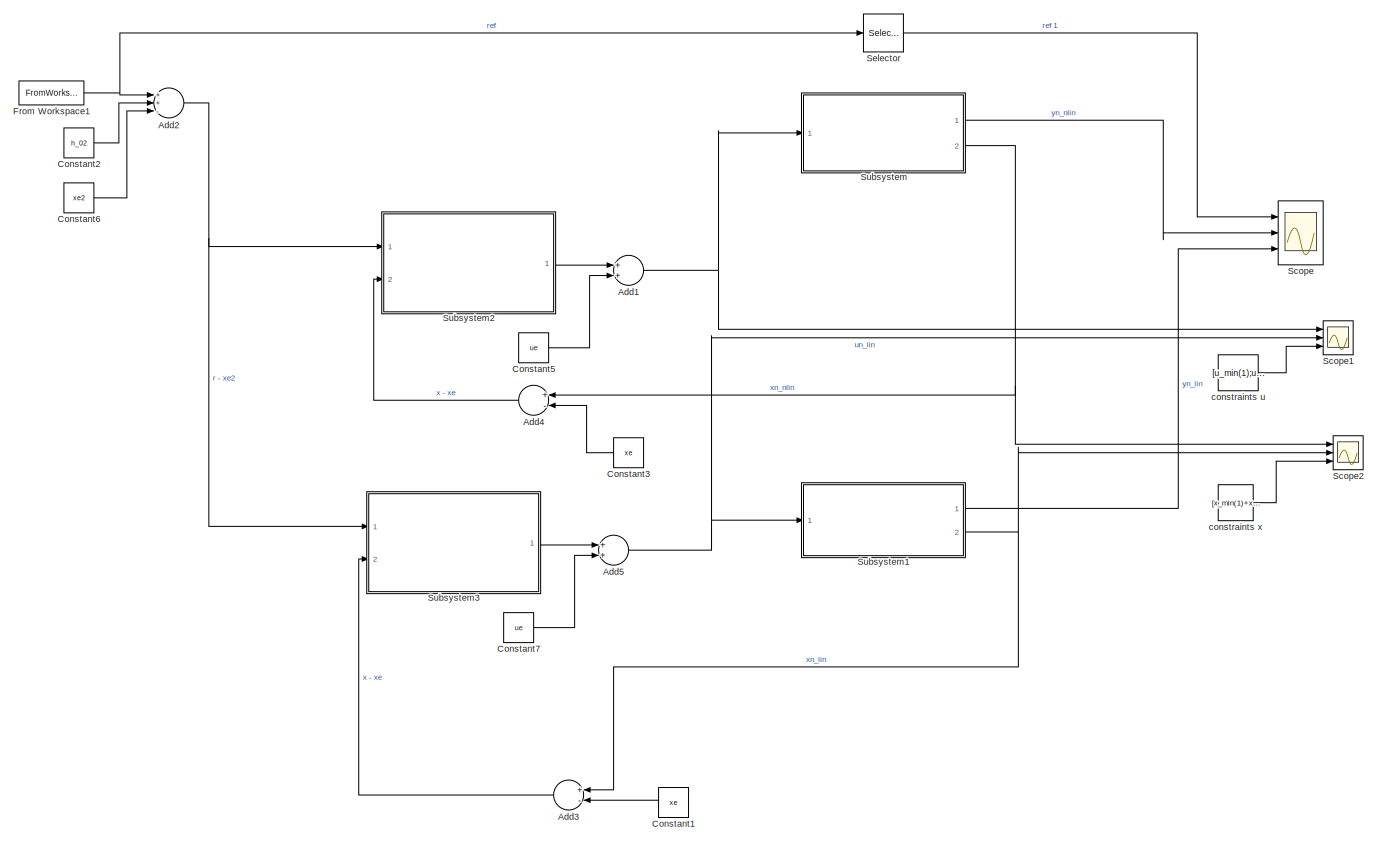
[diagram: root canvas - part 1/1, most of the canvas]
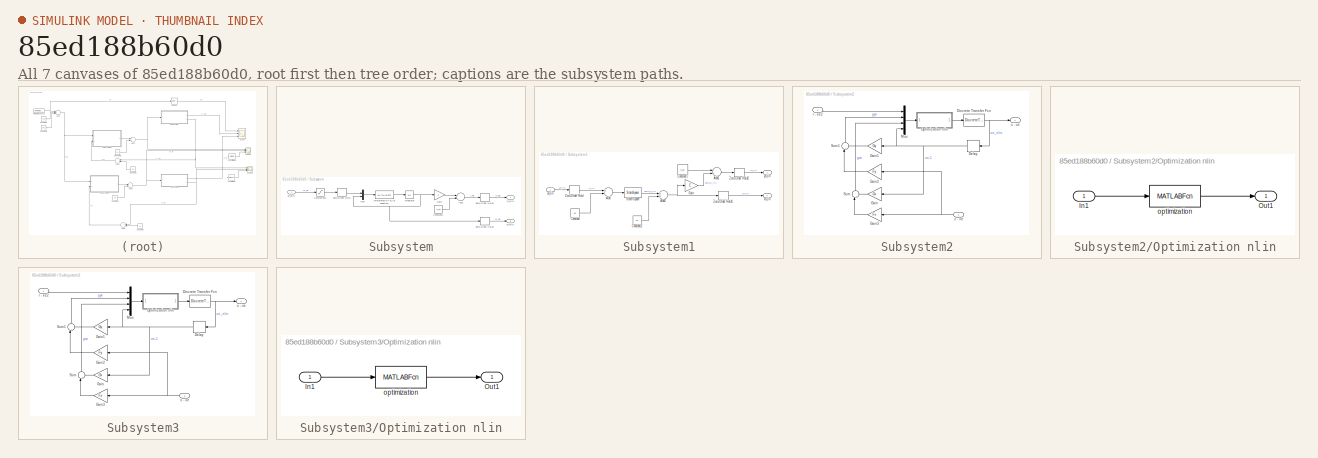
[diagram: thumbnail index - all 7 canvases of the model, root first then tree order]
MODEL slx_85ed188b60d0
KIND model
CONFIG AbsTol = auto
CONFIG EnableMultiTasking = off
CONFIG FixedStep = auto
CONFIG MaxStep = auto
CONFIG MinStep = auto
CONFIG RelTol = 1e-3
CONFIG SampleTimeConstraint = Unconstrained
CONFIG Solver = VariableStepAuto
CONFIG SolverName = VariableStepAuto
CONFIG StartTime = 0.0
CONFIG StopTime = time_end
BLOCK [Sum] Add1
  InputSameDT = off
  OutDataTypeStr = Inherit: Inherit via internal rule
  Ports = [2, 1]
  SaturateOnIntegerOverflow = off
BLOCK [Sum] Add2
  InputSameDT = off
  Inputs = ++-
  OutDataTypeStr = Inherit: Inherit via internal rule
  Ports = [3, 1]
  SaturateOnIntegerOverflow = off
BLOCK [Sum] Add3
  InputSameDT = off
  Inputs = +-
  OutDataTypeStr = Inherit: Inherit via internal rule
  Ports = [2, 1]
  SaturateOnIntegerOverflow = off
BLOCK [Sum] Add4
  InputSameDT = off
  Inputs = +-
  OutDataTypeStr = Inherit: Inherit via internal rule
  Ports = [2, 1]
  SaturateOnIntegerOverflow = off
BLOCK [Sum] Add5
  InputSameDT = off
  OutDataTypeStr = Inherit: Inherit via internal rule
  Ports = [2, 1]
  SaturateOnIntegerOverflow = off
BLOCK [Constant] Constant1
  Value = xe
BLOCK [Constant] Constant2
  Value = h_02
BLOCK [Constant] Constant3
  Value = xe
BLOCK [Constant] Constant5
  Value = ue
BLOCK [Constant] Constant6
  Value = xe2
BLOCK [Constant] Constant7
  Value = ue
BLOCK [FromWorkspace] From Workspace1
  SampleTime = 0
  VariableName = r
  ZeroCross = on
BLOCK [Scope] Scope
  Floating = off
  NumInputPorts = 3
  Ports = [3]
  ScopeSpecificationString = Simulink.scopes.TimeScopeBlockCfg('CurrentConfiguration', extmgr.ConfigurationSet(extmgr.Configuration('Core','General UI',true),extmgr.Configuration('Core','Source UI',true),extmgr.Configuration('Sources','WiredSimulink',true),extmgr.Configuration('Visuals','Time Domain',true,'SerializedDisplays',{struct('MinYLimReal','-1.8928','MaxYLimReal','17.03522','YLabelReal','','MinYLimMag','0.00000','MaxY...<+1428ch>
BLOCK [Scope] Scope1
  Floating = off
  NumInputPorts = 3
  Ports = [3]
  ScopeSpecificationString = Simulink.scopes.TimeScopeBlockCfg('CurrentConfiguration', extmgr.ConfigurationSet(extmgr.Configuration('Core','General UI',true),extmgr.Configuration('Core','Source UI',true),extmgr.Configuration('Sources','WiredSimulink',true,'DataLoggingVariableName','ScopeData1'),extmgr.Configuration('Visuals','Time Domain',true,'SerializedDisplays',{struct('MinYLimReal','-0.625','MaxYLimReal','5.625','YLabelRe...<+1489ch>
BLOCK [Scope] Scope2
  Floating = off
  NumInputPorts = 3
  Ports = [3]
  ScopeSpecificationString = Simulink.scopes.TimeScopeBlockCfg('CurrentConfiguration', extmgr.ConfigurationSet(extmgr.Configuration('Core','General UI',true),extmgr.Configuration('Core','Source UI',true),extmgr.Configuration('Sources','WiredSimulink',true,'DataLoggingVariableName','ScopeData1'),extmgr.Configuration('Visuals','Time Domain',true,'SerializedDisplays',{struct('MinYLimReal','7.49465','MaxYLimReal','33.12092','YLab...<+1741ch>
BLOCK [Selector] Selector
  IndexOptions = Index vector (dialog)
  Indices = [1]
  InputPortWidth = Np
  OutputSizes = 1
  Ports = [1, 1]
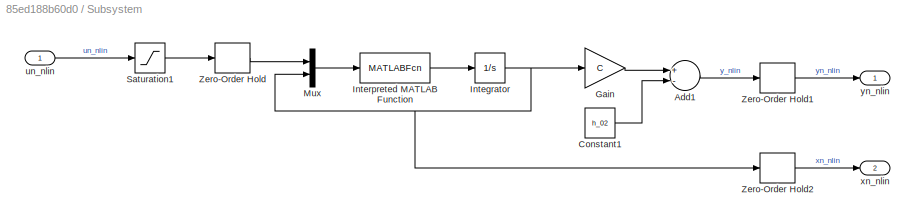
BLOCK [SubSystem] Subsystem
  Ports = [1, 2]
  RequestExecContextInheritance = off
BLOCK [Sum] Subsystem/Add1
  InputSameDT = off
  Inputs = +-
  OutDataTypeStr = Inherit: Inherit via internal rule
  Ports = [2, 1]
  SaturateOnIntegerOverflow = off
BLOCK [Constant] Subsystem/Constant1
  Value = h_02
BLOCK [Gain] Subsystem/Gain
  Gain = C
  Multiplication = Matrix(K*u)
  OutDataTypeStr = Inherit: Inherit via internal rule
  ParamDataTypeStr = Inherit: Inherit via internal rule
  SaturateOnIntegerOverflow = off
BLOCK [Integrator] Subsystem/Integrator
  InitialCondition = [h_01;h_02]
  Ports = [1, 1]
BLOCK [MATLABFcn] Subsystem/Interpreted MATLAB Function
  MATLABFcn = nonlinear_2_tank_model_function_discrete
  Ports = [1, 1]
BLOCK [Mux] Subsystem/Mux
  DisplayOption = bar
  Inputs = 2
  Ports = [2, 1]
BLOCK [Saturate] Subsystem/Saturation1
  InputPortMap = u0
  LowerLimit = u_min(1)
  Ports = [1, 1]
  UpperLimit = u_max(1)
BLOCK [ZeroOrderHold] Subsystem/Zero-Order Hold
  SampleTime = Td
BLOCK [ZeroOrderHold] Subsystem/Zero-Order Hold1
  SampleTime = Td
BLOCK [ZeroOrderHold] Subsystem/Zero-Order Hold2
  SampleTime = Td
BLOCK [Inport] Subsystem/un_nlin
  IconDisplay = Port number
BLOCK [Outport] Subsystem/xn_nlin
  IconDisplay = Port number
  Port = 2
BLOCK [Outport] Subsystem/yn_nlin
  IconDisplay = Port number
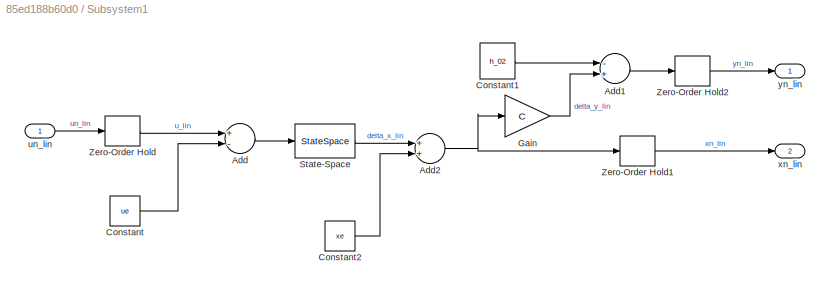
BLOCK [SubSystem] Subsystem1
  Ports = [1, 2]
  RequestExecContextInheritance = off
BLOCK [Sum] Subsystem1/Add
  InputSameDT = off
  Inputs = +-
  OutDataTypeStr = Inherit: Inherit via internal rule
  Ports = [2, 1]
  SaturateOnIntegerOverflow = off
BLOCK [Sum] Subsystem1/Add1
  InputSameDT = off
  Inputs = -+
  OutDataTypeStr = Inherit: Inherit via internal rule
  Ports = [2, 1]
  SaturateOnIntegerOverflow = off
BLOCK [Sum] Subsystem1/Add2
  InputSameDT = off
  OutDataTypeStr = Inherit: Inherit via internal rule
  Ports = [2, 1]
  SaturateOnIntegerOverflow = off
BLOCK [Constant] Subsystem1/Constant
  Value = ue
BLOCK [Constant] Subsystem1/Constant1
  Value = h_02
BLOCK [Constant] Subsystem1/Constant2
  Value = xe
BLOCK [Gain] Subsystem1/Gain
  Gain = C
  Multiplication = Matrix(K*u)
  OutDataTypeStr = Inherit: Inherit via internal rule
  ParamDataTypeStr = Inherit: Inherit via internal rule
  SaturateOnIntegerOverflow = off
BLOCK [StateSpace] Subsystem1/State-Space
  A = A
  B = B
  C = [[1,0];[0,1]]
  D = [[0,0];[0,0]]
  InitialCondition = [h_01;h_02] - xe
  Ports = [1, 1]
BLOCK [ZeroOrderHold] Subsystem1/Zero-Order Hold
  SampleTime = Td
BLOCK [ZeroOrderHold] Subsystem1/Zero-Order Hold1
  SampleTime = Td
BLOCK [ZeroOrderHold] Subsystem1/Zero-Order Hold2
  SampleTime = Td
BLOCK [Inport] Subsystem1/un_lin
  IconDisplay = Port number
BLOCK [Outport] Subsystem1/xn_lin
  IconDisplay = Port number
  Port = 2
BLOCK [Outport] Subsystem1/yn_lin
  IconDisplay = Port number
BLOCK [SubSystem] Subsystem2
  Ports = [2, 1]
  RequestExecContextInheritance = off
BLOCK [Delay] Subsystem2/Delay
  DelayLength = 1
  InitialCondition = [0;0]
  InputPortMap = u0
  Ports = [1, 1]
  SampleTime = Td
BLOCK [DiscreteTransferFcn] Subsystem2/Discrete Transfer Fcn
  Denominator = [1 -1]
  InitialStates = [0;0]
  InputPortMap = u0
  Numerator = [1 0]
  Ports = [1, 1]
  SampleTime = Td
BLOCK [Gain] Subsystem2/Gain
  Gain = Gx
  Multiplication = Matrix(K*u)
  OutDataTypeStr = Inherit: Inherit via internal rule
  ParamDataTypeStr = Inherit: Inherit via internal rule
  SaturateOnIntegerOverflow = off
BLOCK [Gain] Subsystem2/Gain1
  Gain = Gy
  Multiplication = Matrix(K*u)
  OutDataTypeStr = Inherit: Inherit via internal rule
  ParamDataTypeStr = Inherit: Inherit via internal rule
  SaturateOnIntegerOverflow = off
BLOCK [Gain] Subsystem2/Gain2
  Gain = Fy
  Multiplication = Matrix(K*u)
  OutDataTypeStr = Inherit: Inherit via internal rule
  ParamDataTypeStr = Inherit: Inherit via internal rule
  SaturateOnIntegerOverflow = off
BLOCK [Gain] Subsystem2/Gain3
  Gain = Fx
  Multiplication = Matrix(K*u)
  OutDataTypeStr = Inherit: Inherit via internal rule
  ParamDataTypeStr = Inherit: Inherit via internal rule
  SaturateOnIntegerOverflow = off
BLOCK [Mux] Subsystem2/Mux
  DisplayOption = bar
  Ports = [4, 1]
BLOCK [SubSystem] Subsystem2/Optimization nlin
  Ports = [1, 1]
  RequestExecContextInheritance = off
  SystemSampleTime = Td
  TreatAsAtomicUnit = on
BLOCK [Inport] Subsystem2/Optimization nlin/In1
  IconDisplay = Port number
BLOCK [Outport] Subsystem2/Optimization nlin/Out1
  IconDisplay = Port number
BLOCK [MATLABFcn] Subsystem2/Optimization nlin/optimization
  MATLABFcn = online_opt
  Ports = [1, 1]
BLOCK [Sum] Subsystem2/Sum
  IconShape = round
  InputSameDT = off
  Inputs = |++
  OutDataTypeStr = Inherit: Inherit via internal rule
  Ports = [2, 1]
  SaturateOnIntegerOverflow = off
BLOCK [Sum] Subsystem2/Sum1
  IconShape = round
  InputSameDT = off
  Inputs = |++
  OutDataTypeStr = Inherit: Inherit via internal rule
  Ports = [2, 1]
  SaturateOnIntegerOverflow = off
BLOCK [Inport] Subsystem2/r - xe2
  IconDisplay = Port number
BLOCK [Outport] Subsystem2/u - ue
  IconDisplay = Port number
BLOCK [Inport] Subsystem2/x - xe
  IconDisplay = Port number
  Port = 2
BLOCK [SubSystem] Subsystem3
  Ports = [2, 1]
  RequestExecContextInheritance = off
BLOCK [Delay] Subsystem3/Delay
  DelayLength = 1
  InitialCondition = [0;0]
  InputPortMap = u0
  Ports = [1, 1]
  SampleTime = Td
BLOCK [DiscreteTransferFcn] Subsystem3/Discrete Transfer Fcn
  Denominator = [1 -1]
  InitialStates = [0;0]
  InputPortMap = u0
  Numerator = [1 0]
  Ports = [1, 1]
  SampleTime = Td
BLOCK [Gain] Subsystem3/Gain
  Gain = Gx
  Multiplication = Matrix(K*u)
  OutDataTypeStr = Inherit: Inherit via internal rule
  ParamDataTypeStr = Inherit: Inherit via internal rule
  SaturateOnIntegerOverflow = off
BLOCK [Gain] Subsystem3/Gain1
  Gain = Gy
  Multiplication = Matrix(K*u)
  OutDataTypeStr = Inherit: Inherit via internal rule
  ParamDataTypeStr = Inherit: Inherit via internal rule
  SaturateOnIntegerOverflow = off
BLOCK [Gain] Subsystem3/Gain2
  Gain = Fy
  Multiplication = Matrix(K*u)
  OutDataTypeStr = Inherit: Inherit via internal rule
  ParamDataTypeStr = Inherit: Inherit via internal rule
  SaturateOnIntegerOverflow = off
BLOCK [Gain] Subsystem3/Gain3
  Gain = Fx
  Multiplication = Matrix(K*u)
  OutDataTypeStr = Inherit: Inherit via internal rule
  ParamDataTypeStr = Inherit: Inherit via internal rule
  SaturateOnIntegerOverflow = off
BLOCK [Mux] Subsystem3/Mux
  DisplayOption = bar
  Ports = [4, 1]
BLOCK [SubSystem] Subsystem3/Optimization nlin
  Ports = [1, 1]
  RequestExecContextInheritance = off
  SystemSampleTime = Td
  TreatAsAtomicUnit = on
BLOCK [Inport] Subsystem3/Optimization nlin/In1
  IconDisplay = Port number
BLOCK [Outport] Subsystem3/Optimization nlin/Out1
  IconDisplay = Port number
BLOCK [MATLABFcn] Subsystem3/Optimization nlin/optimization
  MATLABFcn = online_opt
  Ports = [1, 1]
BLOCK [Sum] Subsystem3/Sum
  IconShape = round
  InputSameDT = off
  Inputs = |++
  OutDataTypeStr = Inherit: Inherit via internal rule
  Ports = [2, 1]
  SaturateOnIntegerOverflow = off
BLOCK [Sum] Subsystem3/Sum1
  IconShape = round
  InputSameDT = off
  Inputs = |++
  OutDataTypeStr = Inherit: Inherit via internal rule
  Ports = [2, 1]
  SaturateOnIntegerOverflow = off
BLOCK [Inport] Subsystem3/r - xe2
  IconDisplay = Port number
BLOCK [Outport] Subsystem3/u - ue
  IconDisplay = Port number
BLOCK [Inport] Subsystem3/x - xe
  IconDisplay = Port number
  Port = 2
BLOCK [Constant] constraints u
  Value = [u_min(1);u_max(1)]
BLOCK [Constant] constraints x
  Value = [x_min(1)+xe1; x_min(2)+xe2; x_max(1)+xe1;x_max(2)+xe2]
NET Add1:1 -> Scope1:1, Subsystem:1
NET Add2:1 -> Subsystem2:1, Subsystem3:1
LINE Add3:1 -> Subsystem3:2
LINE Add4:1 -> Subsystem2:2
NET Add5:1 -> Scope1:2, Subsystem1:1
LINE Constant1:1 -> Add3:2
LINE Constant2:1 -> Add2:2
LINE Constant3:1 -> Add4:2
LINE Constant5:1 -> Add1:2
LINE Constant6:1 -> Add2:3
LINE Constant7:1 -> Add5:2
NET From Workspace1:1 -> Add2:1, Selector:1
LINE Selector:1 -> Scope:1
LINE Subsystem/Add1:1 -> Subsystem/Zero-Order Hold1:1
LINE Subsystem/Constant1:1 -> Subsystem/Add1:2
LINE Subsystem/Gain:1 -> Subsystem/Add1:1
NET Subsystem/Integrator:1 -> Subsystem/Gain:1, Subsystem/Mux:2, Subsystem/Zero-Order Hold2:1
LINE Subsystem/Interpreted MATLAB Function:1 -> Subsystem/Integrator:1
LINE Subsystem/Mux:1 -> Subsystem/Interpreted MATLAB Function:1
LINE Subsystem/Saturation1:1 -> Subsystem/Zero-Order Hold:1
LINE Subsystem/Zero-Order Hold1:1 -> Subsystem/yn_nlin:1
LINE Subsystem/Zero-Order Hold2:1 -> Subsystem/xn_nlin:1
LINE Subsystem/Zero-Order Hold:1 -> Subsystem/Mux:1
LINE Subsystem/un_nlin:1 -> Subsystem/Saturation1:1
LINE Subsystem1/Add1:1 -> Subsystem1/Zero-Order Hold2:1
NET Subsystem1/Add2:1 -> Subsystem1/Gain:1, Subsystem1/Zero-Order Hold1:1
LINE Subsystem1/Add:1 -> Subsystem1/State-Space:1
LINE Subsystem1/Constant1:1 -> Subsystem1/Add1:1
LINE Subsystem1/Constant2:1 -> Subsystem1/Add2:2
LINE Subsystem1/Constant:1 -> Subsystem1/Add:2
LINE Subsystem1/Gain:1 -> Subsystem1/Add1:2
LINE Subsystem1/State-Space:1 -> Subsystem1/Add2:1
LINE Subsystem1/Zero-Order Hold1:1 -> Subsystem1/xn_lin:1
LINE Subsystem1/Zero-Order Hold2:1 -> Subsystem1/yn_lin:1
LINE Subsystem1/Zero-Order Hold:1 -> Subsystem1/Add:1
LINE Subsystem1/un_lin:1 -> Subsystem1/Zero-Order Hold:1
LINE Subsystem1:1 -> Scope:3
NET Subsystem1:2 -> Add3:1, Scope2:2
NET Subsystem2/Delay:1 -> Subsystem2/Gain1:1, Subsystem2/Gain:1, Subsystem2/Mux:4
NET Subsystem2/Discrete Transfer Fcn:1 -> Subsystem2/Delay:1, Subsystem2/u - ue:1
LINE Subsystem2/Gain1:1 -> Subsystem2/Sum1:2
LINE Subsystem2/Gain2:1 -> Subsystem2/Sum1:1
LINE Subsystem2/Gain3:1 -> Subsystem2/Sum:1
LINE Subsystem2/Gain:1 -> Subsystem2/Sum:2
LINE Subsystem2/Mux:1 -> Subsystem2/Optimization nlin:1
LINE Subsystem2/Optimization nlin/In1:1 -> Subsystem2/Optimization nlin/optimization:1
LINE Subsystem2/Optimization nlin/optimization:1 -> Subsystem2/Optimization nlin/Out1:1
LINE Subsystem2/Optimization nlin:1 -> Subsystem2/Discrete Transfer Fcn:1
LINE Subsystem2/Sum1:1 -> Subsystem2/Mux:2
LINE Subsystem2/Sum:1 -> Subsystem2/Mux:3
LINE Subsystem2/r - xe2:1 -> Subsystem2/Mux:1
NET Subsystem2/x - xe:1 -> Subsystem2/Gain2:1, Subsystem2/Gain3:1
LINE Subsystem2:1 -> Add1:1
NET Subsystem3/Delay:1 -> Subsystem3/Gain1:1, Subsystem3/Gain:1, Subsystem3/Mux:4
NET Subsystem3/Discrete Transfer Fcn:1 -> Subsystem3/Delay:1, Subsystem3/u - ue:1
LINE Subsystem3/Gain1:1 -> Subsystem3/Sum1:2
LINE Subsystem3/Gain2:1 -> Subsystem3/Sum1:1
LINE Subsystem3/Gain3:1 -> Subsystem3/Sum:1
LINE Subsystem3/Gain:1 -> Subsystem3/Sum:2
LINE Subsystem3/Mux:1 -> Subsystem3/Optimization nlin:1
LINE Subsystem3/Optimization nlin/In1:1 -> Subsystem3/Optimization nlin/optimization:1
LINE Subsystem3/Optimization nlin/optimization:1 -> Subsystem3/Optimization nlin/Out1:1
LINE Subsystem3/Optimization nlin:1 -> Subsystem3/Discrete Transfer Fcn:1
LINE Subsystem3/Sum1:1 -> Subsystem3/Mux:2
LINE Subsystem3/Sum:1 -> Subsystem3/Mux:3
LINE Subsystem3/r - xe2:1 -> Subsystem3/Mux:1
NET Subsystem3/x - xe:1 -> Subsystem3/Gain2:1, Subsystem3/Gain3:1
LINE Subsystem3:1 -> Add5:1
LINE Subsystem:1 -> Scope:2
NET Subsystem:2 -> Add4:1, Scope2:1
LINE constraints u:1 -> Scope1:3
LINE constraints x:1 -> Scope2:3
note: NET lines group one-source signal fan-out (src -> all destinations, sorted); 1:1 wires keep LINE
